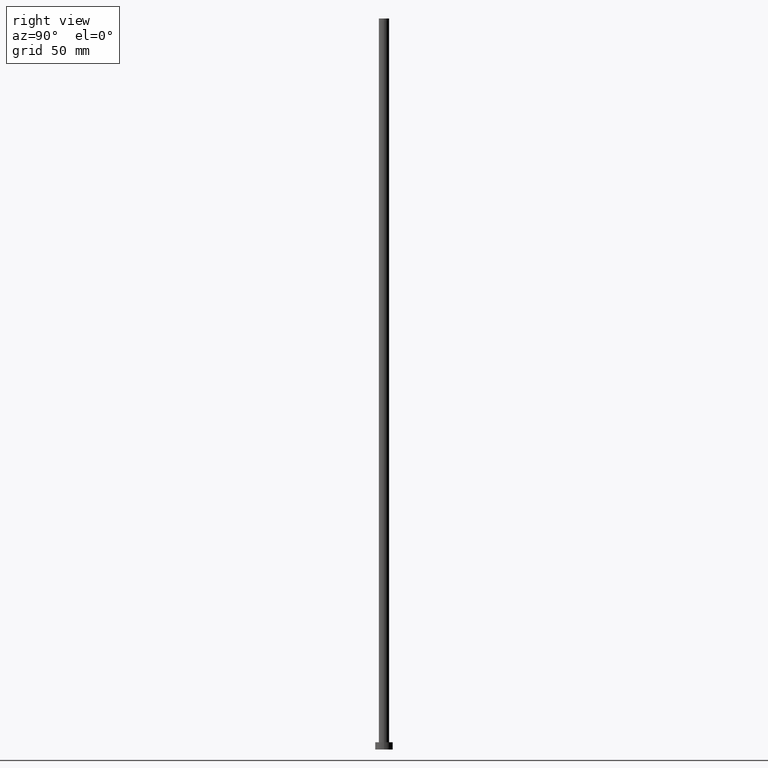
[diagram: clean part render]
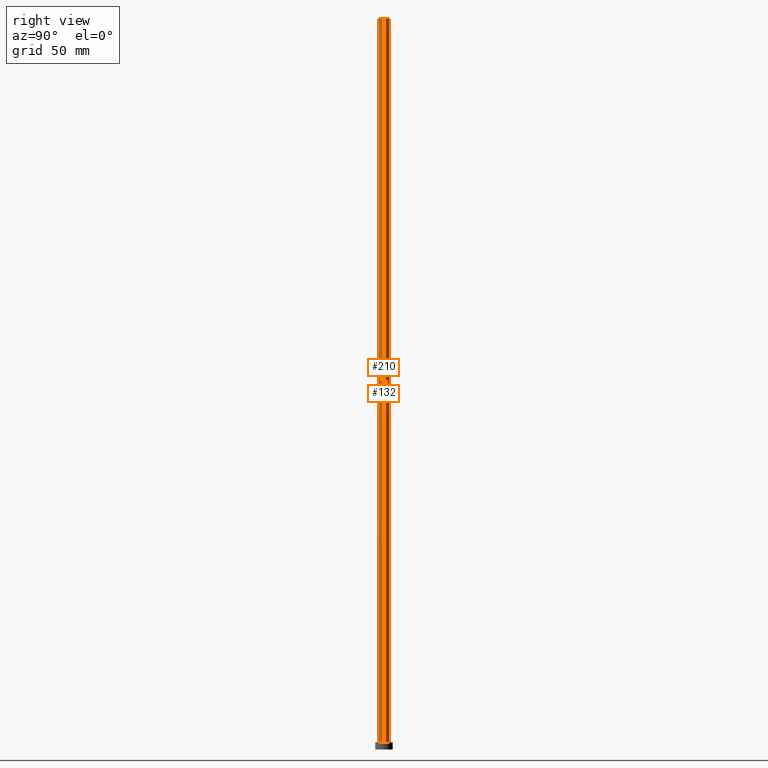
[diagram: same view with one multi-face feature highlighted, each face labeled with its STEP entity id]
A machine part, right view. The highlighted faces form ONE feature: a constant-radius fillet chain: 2 tangent blend faces with common blend radius 3.5 mm. The faces share edges in the B-rep.
Their STEP definitions:
[1] entity #210 (Cylinder):
#3 = CIRCLE ( 'NONE', #196, 3.500000000000000000 ) ;
#4 = FACE_OUTER_BOUND ( 'NONE', #165, .T. ) ;
#11 = VERTEX_POINT ( 'NONE', #60 ) ;
#12 = EDGE_CURVE ( 'NONE', #11, #148, #248, .T. ) ;
#26 = CARTESIAN_POINT ( 'NONE',  ( 0.000000000000000000, 0.000000000000000000, 500.0000000000000000 ) ) ;
#29 = DIRECTION ( 'NONE',  ( -0.000000000000000000, -0.000000000000000000, -1.000000000000000000 ) ) ;
#34 = ORIENTED_EDGE ( 'NONE', *, *, #119, .T. ) ;
#49 = DIRECTION ( 'NONE',  ( -0.000000000000000000, -0.000000000000000000, -1.000000000000000000 ) ) ;
#54 = CARTESIAN_POINT ( 'NONE',  ( 0.000000000000000000, 0.000000000000000000, 500.0000000000000000 ) ) ;
#56 = VERTEX_POINT ( 'NONE', #162 ) ;
#58 = VECTOR ( 'NONE', #29, 1000.000000000000000 ) ;
#60 = CARTESIAN_POINT ( 'NONE',  ( 3.500000000000000000, 4.286263797015736595E-16, 500.0000000000000000 ) ) ;
#64 = VECTOR ( 'NONE', #155, 1000.000000000000000 ) ;
#80 = DIRECTION ( 'NONE',  ( 0.000000000000000000, 0.000000000000000000, 1.000000000000000000 ) ) ;
#93 = DIRECTION ( 'NONE',  ( 1.000000000000000000, 0.000000000000000000, 0.000000000000000000 ) ) ;
#104 = DIRECTION ( 'NONE',  ( 1.000000000000000000, 0.000000000000000000, 0.000000000000000000 ) ) ;
#107 = CARTESIAN_POINT ( 'NONE',  ( 0.000000000000000000, 0.000000000000000000, 5.000000000000000000 ) ) ;
#112 = VERTEX_POINT ( 'NONE', #123 ) ;
#119 = EDGE_CURVE ( 'NONE', #56, #112, #171, .T. ) ;
#122 = AXIS2_PLACEMENT_3D ( 'NONE', #26, #188, #104 ) ;
#123 = CARTESIAN_POINT ( 'NONE',  ( -3.500000000000000000, 0.000000000000000000, 5.000000000000000000 ) ) ;
#124 = EDGE_CURVE ( 'NONE', #112, #148, #3, .T. ) ;
#133 = ORIENTED_EDGE ( 'NONE', *, *, #12, .F. ) ;
#136 = CARTESIAN_POINT ( 'NONE',  ( 3.500000000000000000, 4.286263797015736595E-16, 500.0000000000000000 ) ) ;
#145 = CIRCLE ( 'NONE', #122, 3.500000000000000000 ) ;
#148 = VERTEX_POINT ( 'NONE', #242 ) ;
#155 = DIRECTION ( 'NONE',  ( -0.000000000000000000, -0.000000000000000000, -1.000000000000000000 ) ) ;
#162 = CARTESIAN_POINT ( 'NONE',  ( -3.500000000000000000, 0.000000000000000000, 500.0000000000000000 ) ) ;
#163 = CYLINDRICAL_SURFACE ( 'NONE', #238, 3.500000000000000000 ) ;
#165 = EDGE_LOOP ( 'NONE', ( #133, #251, #34, #225 ) ) ;
#171 = LINE ( 'NONE', #228, #58 ) ;
#188 = DIRECTION ( 'NONE',  ( 0.000000000000000000, 0.000000000000000000, 1.000000000000000000 ) ) ;
#191 = EDGE_CURVE ( 'NONE', #56, #11, #145, .T. ) ;
#196 = AXIS2_PLACEMENT_3D ( 'NONE', #107, #80, #93 ) ;
#210 = ADVANCED_FACE ( 'NONE', ( #4 ), #163, .T. ) ;
#225 = ORIENTED_EDGE ( 'NONE', *, *, #124, .T. ) ;
#228 = CARTESIAN_POINT ( 'NONE',  ( -3.500000000000000000, 0.000000000000000000, 500.0000000000000000 ) ) ;
#238 = AXIS2_PLACEMENT_3D ( 'NONE', #54, #49, #239 ) ;
#239 = DIRECTION ( 'NONE',  ( -1.000000000000000000, 0.000000000000000000, 0.000000000000000000 ) ) ;
#242 = CARTESIAN_POINT ( 'NONE',  ( 3.500000000000000000, 4.286263797015736595E-16, 5.000000000000000000 ) ) ;
#248 = LINE ( 'NONE', #136, #64 ) ;
#251 = ORIENTED_EDGE ( 'NONE', *, *, #191, .F. ) ;
[2] entity #132 (Cylinder):
#8 = DIRECTION ( 'NONE',  ( 0.000000000000000000, 0.000000000000000000, 1.000000000000000000 ) ) ;
#11 = VERTEX_POINT ( 'NONE', #60 ) ;
#12 = EDGE_CURVE ( 'NONE', #11, #148, #248, .T. ) ;
#21 = DIRECTION ( 'NONE',  ( 0.000000000000000000, 0.000000000000000000, 1.000000000000000000 ) ) ;
#23 = DIRECTION ( 'NONE',  ( 1.000000000000000000, 0.000000000000000000, 0.000000000000000000 ) ) ;
#29 = DIRECTION ( 'NONE',  ( -0.000000000000000000, -0.000000000000000000, -1.000000000000000000 ) ) ;
#30 = ORIENTED_EDGE ( 'NONE', *, *, #12, .T. ) ;
#44 = EDGE_CURVE ( 'NONE', #148, #112, #234, .T. ) ;
#52 = DIRECTION ( 'NONE',  ( 1.000000000000000000, 0.000000000000000000, 0.000000000000000000 ) ) ;
#56 = VERTEX_POINT ( 'NONE', #162 ) ;
#58 = VECTOR ( 'NONE', #29, 1000.000000000000000 ) ;
#60 = CARTESIAN_POINT ( 'NONE',  ( 3.500000000000000000, 4.286263797015736595E-16, 500.0000000000000000 ) ) ;
#64 = VECTOR ( 'NONE', #155, 1000.000000000000000 ) ;
#95 = ORIENTED_EDGE ( 'NONE', *, *, #229, .F. ) ;
#112 = VERTEX_POINT ( 'NONE', #123 ) ;
#115 = CYLINDRICAL_SURFACE ( 'NONE', #217, 3.500000000000000000 ) ;
#119 = EDGE_CURVE ( 'NONE', #56, #112, #171, .T. ) ;
#123 = CARTESIAN_POINT ( 'NONE',  ( -3.500000000000000000, 0.000000000000000000, 5.000000000000000000 ) ) ;
#125 = CIRCLE ( 'NONE', #206, 3.500000000000000000 ) ;
#132 = ADVANCED_FACE ( 'NONE', ( #208 ), #115, .T. ) ;
#134 = AXIS2_PLACEMENT_3D ( 'NONE', #142, #21, #23 ) ;
#136 = CARTESIAN_POINT ( 'NONE',  ( 3.500000000000000000, 4.286263797015736595E-16, 500.0000000000000000 ) ) ;
#142 = CARTESIAN_POINT ( 'NONE',  ( 0.000000000000000000, 0.000000000000000000, 5.000000000000000000 ) ) ;
#147 = CARTESIAN_POINT ( 'NONE',  ( 0.000000000000000000, 0.000000000000000000, 500.0000000000000000 ) ) ;
#148 = VERTEX_POINT ( 'NONE', #242 ) ;
#152 = CARTESIAN_POINT ( 'NONE',  ( 0.000000000000000000, 0.000000000000000000, 500.0000000000000000 ) ) ;
#155 = DIRECTION ( 'NONE',  ( -0.000000000000000000, -0.000000000000000000, -1.000000000000000000 ) ) ;
#162 = CARTESIAN_POINT ( 'NONE',  ( -3.500000000000000000, 0.000000000000000000, 500.0000000000000000 ) ) ;
#171 = LINE ( 'NONE', #228, #58 ) ;
#186 = DIRECTION ( 'NONE',  ( -1.000000000000000000, 0.000000000000000000, 0.000000000000000000 ) ) ;
#187 = EDGE_LOOP ( 'NONE', ( #95, #30, #200, #249 ) ) ;
#200 = ORIENTED_EDGE ( 'NONE', *, *, #44, .T. ) ;
#206 = AXIS2_PLACEMENT_3D ( 'NONE', #147, #8, #52 ) ;
#208 = FACE_OUTER_BOUND ( 'NONE', #187, .T. ) ;
#209 = DIRECTION ( 'NONE',  ( -0.000000000000000000, -0.000000000000000000, -1.000000000000000000 ) ) ;
#217 = AXIS2_PLACEMENT_3D ( 'NONE', #152, #209, #186 ) ;
#228 = CARTESIAN_POINT ( 'NONE',  ( -3.500000000000000000, 0.000000000000000000, 500.0000000000000000 ) ) ;
#229 = EDGE_CURVE ( 'NONE', #11, #56, #125, .T. ) ;
#234 = CIRCLE ( 'NONE', #134, 3.500000000000000000 ) ;
#242 = CARTESIAN_POINT ( 'NONE',  ( 3.500000000000000000, 4.286263797015736595E-16, 5.000000000000000000 ) ) ;
#248 = LINE ( 'NONE', #136, #64 ) ;
#249 = ORIENTED_EDGE ( 'NONE', *, *, #119, .F. ) ;